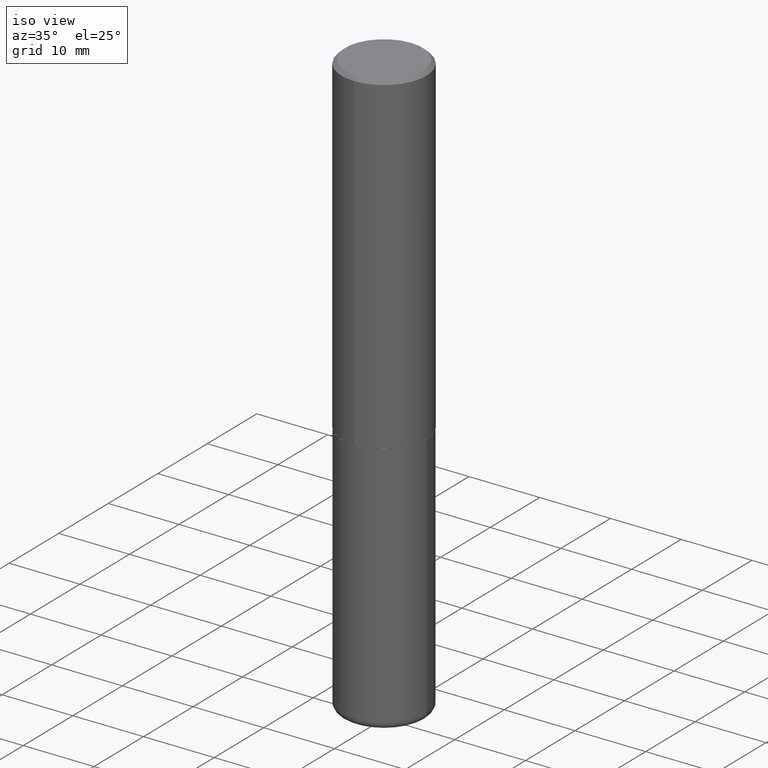
[diagram: clean part render]
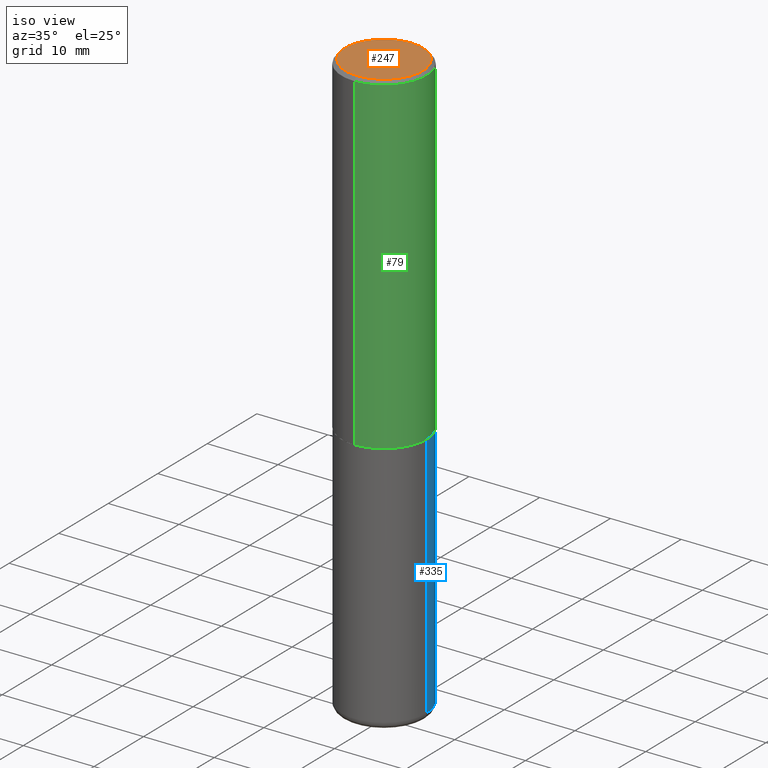
[diagram: same view with three faces highlighted in distinct colors, each labeled with its STEP entity id]
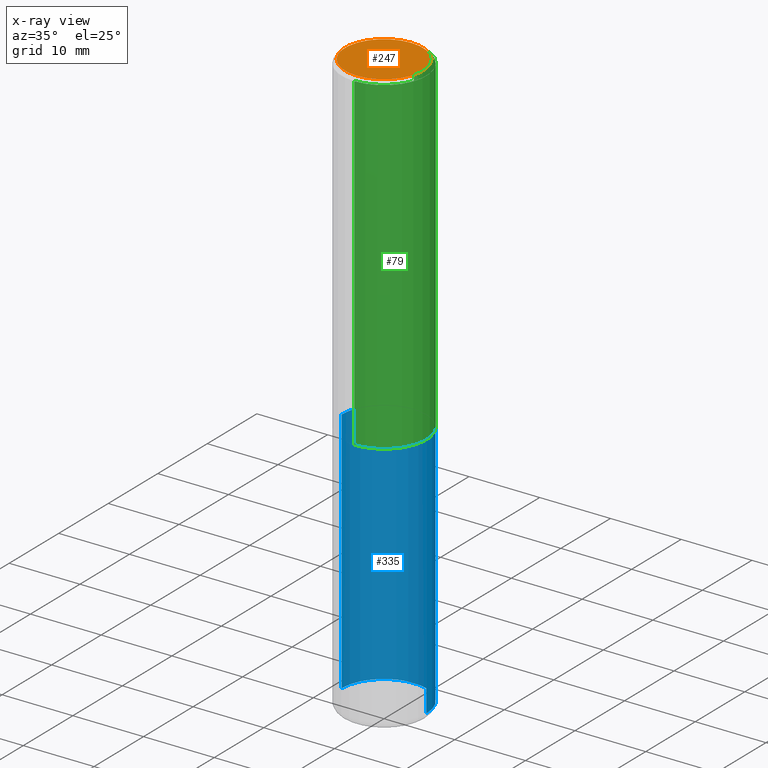
[diagram: x-ray of the same camera — body ghosted, the three highlighted faces saturated]
A machine part, iso view with three faces highlighted in distinct colors.
The next image is the same camera in x-ray (body ghosted, the three faces saturated) — at least one of them is partly hidden behind the body in this view.
Their STEP definitions:

[orange] entity #247 — the highlighted planar face has unit normal (0, -0, -1).
#56 = ORIENTED_EDGE ( 'NONE', *, *, #287, .T. ) ;
#78 = AXIS2_PLACEMENT_3D ( 'NONE', #406, #248, #378 ) ;
#88 = AXIS2_PLACEMENT_3D ( 'NONE', #329, #127, #388 ) ;
#126 = CIRCLE ( 'NONE', #360, 0.2161999999999996425 ) ;
#127 = DIRECTION ( 'NONE',  ( -2.445371925614294233E-29, 3.491620077334691546E-15, 1.000000000000000000 ) ) ;
#161 = CARTESIAN_POINT ( 'NONE',  ( 1.579546157692632438E-15, 0.2161999999999996425, -4.261828037201549199E-16 ) ) ;
#165 = DIRECTION ( 'NONE',  ( -2.445371925614294233E-29, 3.491620077334691546E-15, 1.000000000000000000 ) ) ;
#180 = CARTESIAN_POINT ( 'NONE',  ( -1.551844647095918761E-15, -0.2161999999999996425, 1.083593717719362934E-15 ) ) ;
#190 = ORIENTED_EDGE ( 'NONE', *, *, #303, .T. ) ;
#201 = VERTEX_POINT ( 'NONE', #180 ) ;
#231 = CARTESIAN_POINT ( 'NONE',  ( -8.038070963430480451E-45, 1.147714573189292330E-30, 3.287054569996039822E-16 ) ) ;
#247 = ADVANCED_FACE ( 'NONE', ( #278 ), #414, .F. ) ;
#248 = DIRECTION ( 'NONE',  ( 2.445371925614293953E-29, -3.491620077334691546E-15, -1.000000000000000000 ) ) ;
#271 = CIRCLE ( 'NONE', #88, 0.2161999999999996425 ) ;
#278 = FACE_OUTER_BOUND ( 'NONE', #347, .T. ) ;
#287 = EDGE_CURVE ( 'NONE', #201, #305, #126, .T. ) ;
#295 = DIRECTION ( 'NONE',  ( -6.982962677686265922E-15, -1.000000000000000000, 3.491620077334691152E-15 ) ) ;
#303 = EDGE_CURVE ( 'NONE', #305, #201, #271, .T. ) ;
#305 = VERTEX_POINT ( 'NONE', #161 ) ;
#329 = CARTESIAN_POINT ( 'NONE',  ( -8.038070963430480451E-45, 1.147714573189292330E-30, 3.287054569996039822E-16 ) ) ;
#347 = EDGE_LOOP ( 'NONE', ( #190, #56 ) ) ;
#360 = AXIS2_PLACEMENT_3D ( 'NONE', #231, #165, #295 ) ;
#378 = DIRECTION ( 'NONE',  ( 6.982962677686265922E-15, 1.000000000000000000, -3.491620077334691546E-15 ) ) ;
#388 = DIRECTION ( 'NONE',  ( -6.982962677686265922E-15, -1.000000000000000000, 3.491620077334691152E-15 ) ) ;
#406 = CARTESIAN_POINT ( 'NONE',  ( 1.509716530915768154E-15, 0.2161999999999996425, -5.905355322199570835E-16 ) ) ;
#414 = PLANE ( 'NONE',  #78 ) ;

[blue] entity #335 — the highlighted cylindrical surface (partial cylindrical patch) has radius 5.9995 mm, axis along (-0, 0, 1).
#4 = CYLINDRICAL_SURFACE ( 'NONE', #361, 0.2361999999999999933 ) ;
#23 = VERTEX_POINT ( 'NONE', #382 ) ;
#28 = CARTESIAN_POINT ( 'NONE',  ( 0.2362000000000000210, -1.292092499065682375E-14, -3.228299999999999947 ) ) ;
#44 = CIRCLE ( 'NONE', #187, 0.2361999999999999933 ) ;
#47 = VERTEX_POINT ( 'NONE', #198 ) ;
#52 = CARTESIAN_POINT ( 'NONE',  ( 7.894706947007477118E-29, -1.127154920618732880E-14, -3.228299999999999947 ) ) ;
#69 = EDGE_CURVE ( 'NONE', #23, #405, #232, .T. ) ;
#71 = FACE_OUTER_BOUND ( 'NONE', #73, .T. ) ;
#73 = EDGE_LOOP ( 'NONE', ( #327, #365, #135, #311 ) ) ;
#112 = DIRECTION ( 'NONE',  ( -2.445468806185136597E-29, 3.491481338843145583E-15, 1.000000000000000000 ) ) ;
#113 = EDGE_CURVE ( 'NONE', #148, #47, #44, .T. ) ;
#123 = LINE ( 'NONE', #319, #237 ) ;
#125 = CARTESIAN_POINT ( 'NONE',  ( 0.000000000000000000, 0.000000000000000000, 0.000000000000000000 ) ) ;
#135 = ORIENTED_EDGE ( 'NONE', *, *, #69, .F. ) ;
#148 = VERTEX_POINT ( 'NONE', #28 ) ;
#152 = DIRECTION ( 'NONE',  ( -2.445468806185136877E-29, 3.491481338843145188E-15, 1.000000000000000000 ) ) ;
#163 = CARTESIAN_POINT ( 'NONE',  ( -0.2361999999999999933, -7.187791195925986796E-15, -1.850400000000000267 ) ) ;
#187 = AXIS2_PLACEMENT_3D ( 'NONE', #52, #112, #304 ) ;
#194 = EDGE_CURVE ( 'NONE', #47, #405, #245, .T. ) ;
#198 = CARTESIAN_POINT ( 'NONE',  ( -0.2362000000000000210, -9.593247264321970832E-15, -3.228299999999999947 ) ) ;
#232 = CIRCLE ( 'NONE', #302, 0.2361999999999999933 ) ;
#235 = DIRECTION ( 'NONE',  ( -2.445468806185136597E-29, 3.491481338843145583E-15, 1.000000000000000000 ) ) ;
#237 = VECTOR ( 'NONE', #152, 39.37007874015748143 ) ;
#240 = CARTESIAN_POINT ( 'NONE',  ( 4.525095478964977394E-29, -6.460637069395357576E-15, -1.850400000000000267 ) ) ;
#245 = LINE ( 'NONE', #410, #376 ) ;
#289 = DIRECTION ( 'NONE',  ( -2.445468806185136597E-29, 3.491481338843145583E-15, 1.000000000000000000 ) ) ;
#302 = AXIS2_PLACEMENT_3D ( 'NONE', #240, #235, #363 ) ;
#304 = DIRECTION ( 'NONE',  ( 1.000000000000000000, -6.982962677686265133E-15, 0.000000000000000000 ) ) ;
#311 = ORIENTED_EDGE ( 'NONE', *, *, #370, .F. ) ;
#319 = CARTESIAN_POINT ( 'NONE',  ( 0.2361999999999999933, -1.649375784469496131E-15, 1.151752954443000088E-29 ) ) ;
#327 = ORIENTED_EDGE ( 'NONE', *, *, #113, .T. ) ;
#335 = ADVANCED_FACE ( 'NONE', ( #71 ), #4, .T. ) ;
#361 = AXIS2_PLACEMENT_3D ( 'NONE', #125, #289, #387 ) ;
#363 = DIRECTION ( 'NONE',  ( 1.000000000000000000, -6.982962677686269077E-15, 0.000000000000000000 ) ) ;
#365 = ORIENTED_EDGE ( 'NONE', *, *, #194, .T. ) ;
#370 = EDGE_CURVE ( 'NONE', #148, #23, #123, .T. ) ;
#372 = DIRECTION ( 'NONE',  ( -2.445468806185136877E-29, 3.491481338843145188E-15, 1.000000000000000000 ) ) ;
#376 = VECTOR ( 'NONE', #372, 39.37007874015748143 ) ;
#382 = CARTESIAN_POINT ( 'NONE',  ( 0.2361999999999999933, -8.110012853864854101E-15, -1.850400000000000267 ) ) ;
#387 = DIRECTION ( 'NONE',  ( 1.000000000000000000, -6.982962677686266711E-15, 4.876176775795936353E-29 ) ) ;
#405 = VERTEX_POINT ( 'NONE', #163 ) ;
#410 = CARTESIAN_POINT ( 'NONE',  ( -0.2361999999999999933, 1.678301941865356591E-15, -1.161852468318208757E-29 ) ) ;

[green] entity #79 — the highlighted cylindrical surface (partial cylindrical patch) has radius 5.9995 mm, axis along (-0, 0, 1).
#3 = DIRECTION ( 'NONE',  ( -6.982962677686265922E-15, -1.000000000000000000, 3.487819265831411744E-15 ) ) ;
#19 = CIRCLE ( 'NONE', #350, 0.2361999999999999933 ) ;
#20 = EDGE_LOOP ( 'NONE', ( #183, #285, #193, #219 ) ) ;
#36 = AXIS2_PLACEMENT_3D ( 'NONE', #286, #283, #94 ) ;
#38 = CARTESIAN_POINT ( 'NONE',  ( 1.678301941865357183E-15, 0.2362000000000001043, -8.247206622664545710E-16 ) ) ;
#45 = EDGE_CURVE ( 'NONE', #93, #256, #385, .T. ) ;
#79 = ADVANCED_FACE ( 'NONE', ( #402 ), #142, .T. ) ;
#80 = CARTESIAN_POINT ( 'NONE',  ( -1.649375784469452349E-15, -0.2362000000000066546, -1.849399999999999489 ) ) ;
#84 = DIRECTION ( 'NONE',  ( -6.982962677686265922E-15, -1.000000000000000000, 3.491620077334691941E-15 ) ) ;
#93 = VERTEX_POINT ( 'NONE', #80 ) ;
#94 = DIRECTION ( 'NONE',  ( -6.982962677686265133E-15, -1.000000000000000000, 3.469747663417773847E-15 ) ) ;
#96 = VERTEX_POINT ( 'NONE', #208 ) ;
#99 = CARTESIAN_POINT ( 'NONE',  ( -1.649375784469496722E-15, -0.2362000000000001043, 8.247206622664545710E-16 ) ) ;
#142 = CYLINDRICAL_SURFACE ( 'NONE', #291, 0.2362000000000001043 ) ;
#183 = ORIENTED_EDGE ( 'NONE', *, *, #340, .T. ) ;
#193 = ORIENTED_EDGE ( 'NONE', *, *, #263, .F. ) ;
#196 = DIRECTION ( 'NONE',  ( -2.445371925614294233E-29, 3.491620077334691546E-15, 1.000000000000000000 ) ) ;
#208 = CARTESIAN_POINT ( 'NONE',  ( 1.649375784469496525E-15, 0.2361999999999999378, -0.02000000000000087472 ) ) ;
#212 = CARTESIAN_POINT ( 'NONE',  ( -1.620449627073635079E-15, -0.2362000000000000766, -0.01999999999999922673 ) ) ;
#218 = CARTESIAN_POINT ( 'NONE',  ( 4.890743851228601113E-31, -6.983240154669400497E-17, -0.02000000000000005246 ) ) ;
#219 = ORIENTED_EDGE ( 'NONE', *, *, #45, .F. ) ;
#225 = DIRECTION ( 'NONE',  ( -2.445371925614294233E-29, 3.491620077334691546E-15, 1.000000000000000000 ) ) ;
#243 = DIRECTION ( 'NONE',  ( -2.445371925614294233E-29, 3.491620077334691546E-15, 1.000000000000000000 ) ) ;
#250 = CARTESIAN_POINT ( 'NONE',  ( 1.678301941865380454E-15, 0.2361999999999937760, -1.849400000000001043 ) ) ;
#256 = VERTEX_POINT ( 'NONE', #212 ) ;
#258 = VECTOR ( 'NONE', #196, 39.37007874015748143 ) ;
#263 = EDGE_CURVE ( 'NONE', #256, #96, #19, .T. ) ;
#269 = EDGE_CURVE ( 'NONE', #323, #96, #389, .T. ) ;
#274 = CARTESIAN_POINT ( 'NONE',  ( 0.000000000000000000, 0.000000000000000000, 0.000000000000000000 ) ) ;
#283 = DIRECTION ( 'NONE',  ( -2.445371925614294233E-29, 3.491620077334691546E-15, 1.000000000000000000 ) ) ;
#285 = ORIENTED_EDGE ( 'NONE', *, *, #269, .T. ) ;
#286 = CARTESIAN_POINT ( 'NONE',  ( 4.522470839231075964E-29, -6.457402171022779437E-15, -1.849400000000000155 ) ) ;
#291 = AXIS2_PLACEMENT_3D ( 'NONE', #274, #243, #84 ) ;
#297 = CIRCLE ( 'NONE', #36, 0.2362000000000002153 ) ;
#316 = VECTOR ( 'NONE', #225, 39.37007874015748143 ) ;
#323 = VERTEX_POINT ( 'NONE', #250 ) ;
#340 = EDGE_CURVE ( 'NONE', #93, #323, #297, .T. ) ;
#348 = DIRECTION ( 'NONE',  ( -2.445371925614294233E-29, 3.491620077334691546E-15, 1.000000000000000000 ) ) ;
#350 = AXIS2_PLACEMENT_3D ( 'NONE', #218, #348, #3 ) ;
#385 = LINE ( 'NONE', #99, #316 ) ;
#389 = LINE ( 'NONE', #38, #258 ) ;
#402 = FACE_OUTER_BOUND ( 'NONE', #20, .T. ) ;